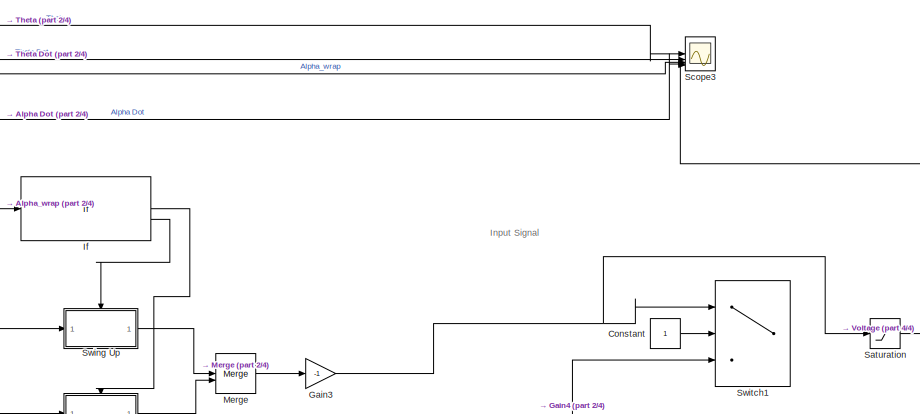
[diagram: root canvas - part 1/4, top right region]
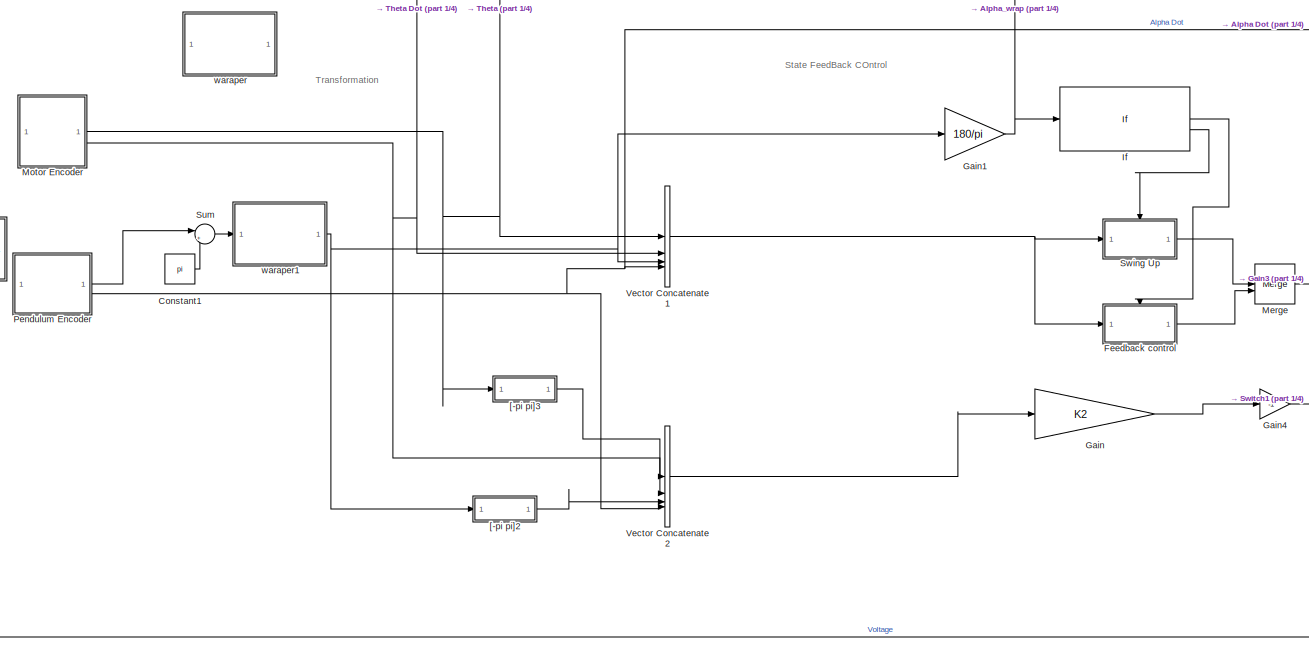
[diagram: root canvas - part 2/4, center side, full height]
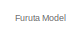
[diagram: root canvas - part 3/4, top left region]
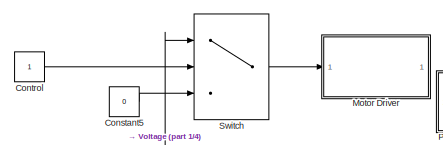
[diagram: root canvas - part 4/4, middle left region]
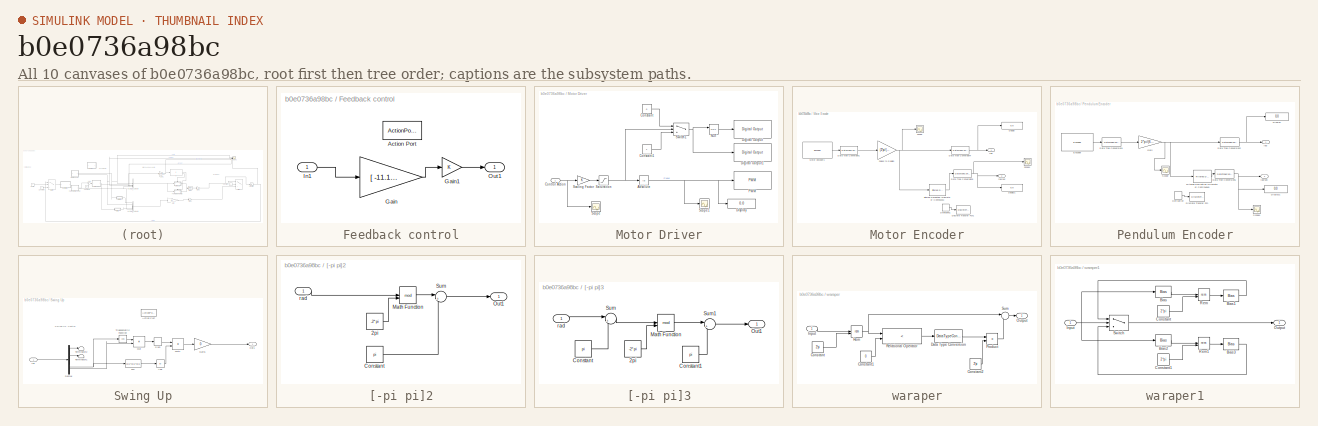
[diagram: thumbnail index - all 10 canvases of the model, root first then tree order]
MODEL slx_b0e0736a98bc
KIND model
CONFIG AbsTol = auto
CONFIG EnableMultiTasking = off
CONFIG FixedStep = Ts
CONFIG MaxStep = auto
CONFIG MinStep = auto
CONFIG PreLoadFcn = %myBusDef
CONFIG RelTol = 1e-3
CONFIG SampleTimeConstraint = Unconstrained
CONFIG SolverName = FixedStepAuto
CONFIG StartFcn = % Full path to the block\n%blk = 'Furuta_Control/Bus Creator';\n\n% Attach the event listener\n%h = add_exec_event_listener(blk, ...\n%         'PostOutputs', @displayBusdata);
CONFIG StartTime = 0.0
CONFIG StopTime = 30
BLOCK [Constant] Constant
  SampleTime = -1
BLOCK [Constant] Constant1
  SampleTime = -1
  Value = pi
BLOCK [Constant] Constant5
  Value = 0
BLOCK [Constant] Control
  SampleTime = -1
BLOCK [SubSystem] Feedback control
  TreatAsAtomicUnit = on
BLOCK [ActionPort] Feedback control/Action Port
  ActionPortLabel = if((u1 < 20) & (u1 > -20))
BLOCK [Gain] Feedback control/Gain
  Gain = [ -11.18033989  -17.56383192 -336.55496326  -27.29856104]
  Multiplication = Matrix(K*u)
  OutDataTypeStr = double
  ParamDataTypeStr = double
BLOCK [Gain] Feedback control/Gain1
BLOCK [Inport] Feedback control/In1
BLOCK [Outport] Feedback control/Out1
  VectorParamsAs1DForOutWhenUnconnected = off
BLOCK [Gain] Gain
  Commented = on
  Gain = K2
  Multiplication = Matrix(K*u)
BLOCK [Gain] Gain1
  Gain = 180/pi
BLOCK [Gain] Gain3
  Gain = -1
BLOCK [Gain] Gain4
  Commented = on
  Gain = -1
BLOCK [If] If
  IfExpression = (u1 < 20) & (u1 > -20)
BLOCK [Merge] Merge
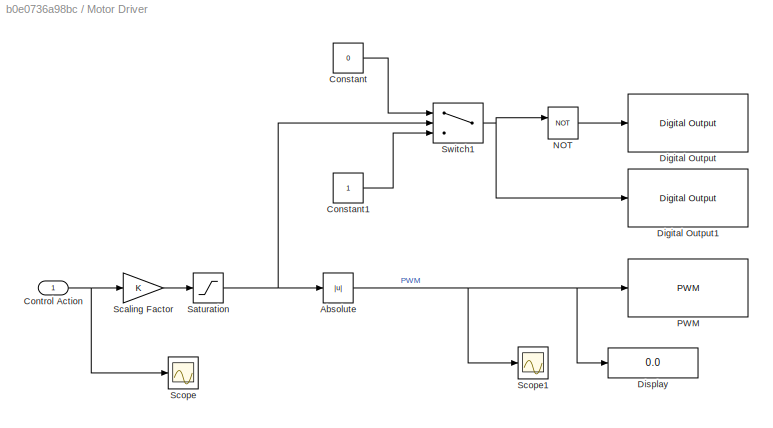
BLOCK [SubSystem] Motor Driver
BLOCK [Abs] Motor Driver/Absolute
  SaturateOnIntegerOverflow = off
BLOCK [Constant] Motor Driver/Constant
  Value = 0
BLOCK [Constant] Motor Driver/Constant1
BLOCK [Inport] Motor Driver/Control Action
BLOCK [Reference] Motor Driver/Digital Output  REF=arduinolib/Digital Output
  SourceBlock = arduinolib/Digital Output
  SourceType = Arduino Digital Output
BLOCK [Reference] Motor Driver/Digital Output1  REF=arduinolib/Digital Output
  SourceBlock = arduinolib/Digital Output
  SourceType = Arduino Digital Output
BLOCK [Display] Motor Driver/Display
  Decimation = 1
BLOCK [Logic] Motor Driver/NOT
  AllPortsSameDT = off
  IconShape = distinctive
  Operator = NOT
  OutDataTypeStr = boolean
BLOCK [Reference] Motor Driver/PWM  REF=arduinolib/PWM
  SourceBlock = arduinolib/PWM
  SourceType = Arduino PWM
BLOCK [Saturate] Motor Driver/Saturation
  LowerLimit = -255
  UpperLimit = 255
BLOCK [Gain] Motor Driver/Scaling Factor
BLOCK [Scope] Motor Driver/Scope
  Floating = off
  NumInputPorts = 1
  ScopeSpecificationString = Simulink.scopes.TimeScopeBlockCfg('CurrentConfiguration', extmgr.ConfigurationSet(extmgr.Configuration('Core','General UI',true),extmgr.Configuration('Core','Source UI',true),extmgr.Configuration('Sources','WiredSimulink',true,'DataLoggingVariableName','ScopeData1'),extmgr.Configuration('Visuals','Time Domain',true,'SerializedDisplays',{struct('MinYLimReal','-318.75','MaxYLimReal','318.75','YLabel...<+1442ch>
BLOCK [Scope] Motor Driver/Scope1
  Floating = off
  NumInputPorts = 1
  ScopeSpecificationString = Simulink.scopes.TimeScopeBlockCfg('CurrentConfiguration', extmgr.ConfigurationSet(extmgr.Configuration('Core','General UI',true),extmgr.Configuration('Core','Source UI',true),extmgr.Configuration('Sources','WiredSimulink',true,'DataLoggingVariableName','ScopeData1'),extmgr.Configuration('Visuals','Time Domain',true,'SerializedDisplays',{struct('MinYLimReal','-31.875','MaxYLimReal','286.875','YLabe...<+1437ch>
BLOCK [Switch] Motor Driver/Switch1
  InputSameDT = off
  SaturateOnIntegerOverflow = off
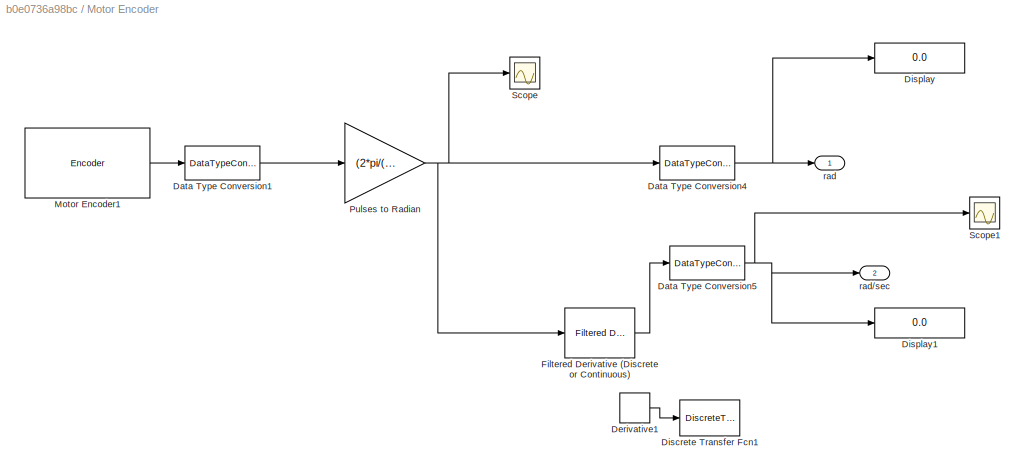
BLOCK [SubSystem] Motor Encoder
BLOCK [DataTypeConversion] Motor Encoder/Data Type Conversion1
  OutDataTypeStr = double
  RndMeth = Floor
  SaturateOnIntegerOverflow = off
BLOCK [DataTypeConversion] Motor Encoder/Data Type Conversion4
  RndMeth = Floor
  SaturateOnIntegerOverflow = off
BLOCK [DataTypeConversion] Motor Encoder/Data Type Conversion5
  RndMeth = Floor
  SaturateOnIntegerOverflow = off
BLOCK [Derivative] Motor Encoder/Derivative1
  Commented = on
BLOCK [DiscreteTransferFcn] Motor Encoder/Discrete Transfer Fcn1
  Commented = on
  Denominator = [1 -a]
  InputPortMap = u0
  Numerator = [1-a]
BLOCK [Display] Motor Encoder/Display
  Decimation = 1
BLOCK [Display] Motor Encoder/Display1
  Decimation = 1
BLOCK [Reference] Motor Encoder/Filtered Derivative (Discrete or Continuous)  REF=eeGeneralControl/Filtered Derivative
(Discrete or Continuous)
  SourceBlock = eeGeneralControl/Filtered Derivative\n(Discrete or Continuous)
  SourceType = Filtered Derivative (Discrete or Continuous)
BLOCK [Reference] Motor Encoder/Motor Encoder1  REF=arduinosensorlib/Encoder
  SourceBlock = arduinosensorlib/Encoder
  SourceType = Arduino Rotary Encoder
BLOCK [Gain] Motor Encoder/Pulses to Radian
  Gain = (2*pi/(374*4))
BLOCK [Scope] Motor Encoder/Scope
  Floating = off
  NumInputPorts = 1
  ScopeSpecificationString = Simulink.scopes.TimeScopeBlockCfg('CurrentConfiguration', extmgr.ConfigurationSet(extmgr.Configuration('Core','General UI',true),extmgr.Configuration('Core','Source UI',true),extmgr.Configuration('Sources','WiredSimulink',true,'DataLoggingVariableName','ScopeData1'),extmgr.Configuration('Visuals','Time Domain',true,'SerializedDisplays',{struct('MinYLimReal','-0.7833','MaxYLimReal','1.7157','YLabel...<+1453ch>
BLOCK [Scope] Motor Encoder/Scope1
  Floating = off
  NumInputPorts = 1
  ScopeSpecificationString = Simulink.scopes.TimeScopeBlockCfg('CurrentConfiguration', extmgr.ConfigurationSet(extmgr.Configuration('Core','General UI',true),extmgr.Configuration('Core','Source UI',true),extmgr.Configuration('Sources','WiredSimulink',true,'DataLoggingVariableName','ScopeData1'),extmgr.Configuration('Visuals','Time Domain',true,'SerializedDisplays',{struct('MinYLimReal','-1.00000','MaxYLimReal','1.00000','YLab...<+1436ch>
BLOCK [Outport] Motor Encoder/rad
BLOCK [Outport] Motor Encoder/rad//sec
  Port = 2
BLOCK [SubSystem] Pendulum Encoder
BLOCK [DataTypeConversion] Pendulum Encoder/Data Type Conversion1
  OutDataTypeStr = double
  RndMeth = Floor
  SaturateOnIntegerOverflow = off
BLOCK [DataTypeConversion] Pendulum Encoder/Data Type Conversion2
  RndMeth = Floor
  SaturateOnIntegerOverflow = off
BLOCK [DataTypeConversion] Pendulum Encoder/Data Type Conversion5
  RndMeth = Floor
  SaturateOnIntegerOverflow = off
BLOCK [Derivative] Pendulum Encoder/Derivative
  Commented = on
BLOCK [DiscreteTransferFcn] Pendulum Encoder/Discrete Transfer Fcn
  Commented = on
  Denominator = [1 -a]
  InputPortMap = u0
  Numerator = [1-a]
BLOCK [Display] Pendulum Encoder/Display
  Decimation = 1
BLOCK [Display] Pendulum Encoder/Display1
  Decimation = 1
BLOCK [Reference] Pendulum Encoder/Encoder  REF=arduinosensorlib/Encoder
  SourceBlock = arduinosensorlib/Encoder
  SourceType = Arduino Rotary Encoder
BLOCK [Reference] Pendulum Encoder/Filtered Derivative (Discrete or Continuous)  REF=eeGeneralControl/Filtered Derivative
(Discrete or Continuous)
  SourceBlock = eeGeneralControl/Filtered Derivative\n(Discrete or Continuous)
  SourceType = Filtered Derivative (Discrete or Continuous)
BLOCK [Gain] Pendulum Encoder/Gain
  Gain = 2*pi/(600*4)
BLOCK [Scope] Pendulum Encoder/Scope
  Floating = off
  NumInputPorts = 1
  ScopeSpecificationString = Simulink.scopes.TimeScopeBlockCfg('CurrentConfiguration', extmgr.ConfigurationSet(extmgr.Configuration('Core','General UI',true),extmgr.Configuration('Core','Source UI',true),extmgr.Configuration('Sources','WiredSimulink',true,'DataLoggingVariableName','ScopeData2'),extmgr.Configuration('Visuals','Time Domain',true),extmgr.Configuration('Tools','Plot Navigation',true),extmgr.Configuration('Tools',...<+40ch>
BLOCK [Scope] Pendulum Encoder/Scope1
  Floating = off
  NumInputPorts = 1
  ScopeSpecificationString = Simulink.scopes.TimeScopeBlockCfg('CurrentConfiguration', extmgr.ConfigurationSet(extmgr.Configuration('Core','General UI',true),extmgr.Configuration('Core','Source UI',true),extmgr.Configuration('Sources','WiredSimulink',true,'DataLoggingVariableName','ScopeData5'),extmgr.Configuration('Visuals','Time Domain',true,'SerializedDisplays',{struct('MinYLimReal','-1.00000','MaxYLimReal','1.00000','YLab...<+1405ch>
BLOCK [Outport] Pendulum Encoder/rad
BLOCK [Outport] Pendulum Encoder/rad//sec
  Port = 2
BLOCK [Saturate] Saturation
  LowerLimit = -255
  UpperLimit = 255
BLOCK [Scope] Scope3
  Floating = off
  NumInputPorts = 5
  ScopeSpecificationString = Simulink.scopes.TimeScopeBlockCfg('CurrentConfiguration', extmgr.ConfigurationSet(extmgr.Configuration('Core','General UI',true),extmgr.Configuration('Core','Source UI',true),extmgr.Configuration('Sources','WiredSimulink',true,'DataLoggingVariableName','ScopeData1'),extmgr.Configuration('Visuals','Time Domain',true,'SerializedDisplays',{struct('MinYLimReal','-2.6128','MaxYLimReal','-0.6128','YLabe...<+3548ch>
BLOCK [Sum] Sum
  Inputs = |++
BLOCK [SubSystem] Swing Up
  TreatAsAtomicUnit = on
BLOCK [Abs] Swing Up/Abs
  SaturateOnIntegerOverflow = off
BLOCK [ActionPort] Swing Up/Action Port
  ActionPortLabel = else
BLOCK [Demux] Swing Up/Demux
BLOCK [Fcn] Swing Up/Fcn
  Expr = u(1)*u(1)*u(1)
BLOCK [Gain] Swing Up/Gain1
  Gain = 0
BLOCK [Inport] Swing Up/In1
BLOCK [Product] Swing Up/Mut
  Inputs = **
BLOCK [Product] Swing Up/Mut1
  Inputs = **
BLOCK [Outport] Swing Up/Out1
  InitialOutput = 0
  VectorParamsAs1DForOutWhenUnconnected = off
BLOCK [Signum] Swing Up/Sign
BLOCK [Terminator] Swing Up/Terminator1
BLOCK [Terminator] Swing Up/Terminator2
BLOCK [Trigonometry] Swing Up/Trigonometric Function
  Operator = cos
BLOCK [Switch] Switch
  Criteria = u2 > Threshold
  InputSameDT = off
  SaturateOnIntegerOverflow = off
  Threshold = 0.5
BLOCK [Switch] Switch1
  Commented = on
  Criteria = u2 > Threshold
  InputSameDT = off
  SaturateOnIntegerOverflow = off
  Threshold = 0.5
BLOCK [Concatenate] Vector Concatenate1
  Mode = Multidimensional array
  NumInputs = 4
BLOCK [Concatenate] Vector Concatenate2
  Commented = on
  Mode = Multidimensional array
  NumInputs = 4
BLOCK [SubSystem] [-pi pi]2
  Commented = on
BLOCK [Constant] [-pi pi]2/2pi
  Value = -2*pi
BLOCK [Constant] [-pi pi]2/Constant
  Value = pi
BLOCK [Math] [-pi pi]2/Math Function
  Operator = mod
  SignedPower = on
BLOCK [Outport] [-pi pi]2/Out1
  VectorParamsAs1DForOutWhenUnconnected = off
BLOCK [Sum] [-pi pi]2/Sum
  Inputs = |++
BLOCK [Inport] [-pi pi]2/rad
BLOCK [SubSystem] [-pi pi]3
  Commented = on
BLOCK [Constant] [-pi pi]3/2pi
  Value = -2*pi
BLOCK [Constant] [-pi pi]3/Constant
  Value = pi
BLOCK [Constant] [-pi pi]3/Constant1
  Value = pi
BLOCK [Math] [-pi pi]3/Math Function
  Operator = mod
  SignedPower = on
BLOCK [Outport] [-pi pi]3/Out1
  VectorParamsAs1DForOutWhenUnconnected = off
BLOCK [Sum] [-pi pi]3/Sum
  Inputs = |+-
BLOCK [Sum] [-pi pi]3/Sum1
  Inputs = |++
BLOCK [Inport] [-pi pi]3/rad
BLOCK [SubSystem] waraper
  Commented = on
BLOCK [Constant] waraper/Constant
  Value = 2*pi
BLOCK [Constant] waraper/Constant1
  Value = 0
BLOCK [Constant] waraper/Constant2
  Value = 2*pi
BLOCK [DataTypeConversion] waraper/Data Type Conversion
  OutDataTypeStr = double
  RndMeth = Floor
  SaturateOnIntegerOverflow = off
BLOCK [Inport] waraper/Input
BLOCK [Outport] waraper/Output
BLOCK [Product] waraper/Product
BLOCK [RelationalOperator] waraper/Relational Operator
  InputSameDT = off
  Operator = <
  OutDataTypeStr = boolean
  RndMeth = Simplest
BLOCK [Math] waraper/Rem
  Operator = rem
BLOCK [Sum] waraper/Sum
  Inputs = |++
BLOCK [SubSystem] waraper1
BLOCK [Bias] waraper1/Bias
  Bias = pi
  SaturateOnIntegerOverflow = off
BLOCK [Bias] waraper1/Bias1
  Bias = -pi
  SaturateOnIntegerOverflow = off
BLOCK [Bias] waraper1/Bias2
  Bias = -pi
  SaturateOnIntegerOverflow = off
BLOCK [Bias] waraper1/Bias3
  Bias = +pi
  SaturateOnIntegerOverflow = off
BLOCK [Constant] waraper1/Constant
  Value = 2*pi
BLOCK [Constant] waraper1/Constant1
  Value = 2*pi
BLOCK [Inport] waraper1/Input
BLOCK [Outport] waraper1/Output
BLOCK [Math] waraper1/Rem
  Operator = rem
BLOCK [Math] waraper1/Rem1
  Operator = rem
BLOCK [Switch] waraper1/Switch
  InputSameDT = off
  SaturateOnIntegerOverflow = off
ANNOTATION (root): Furuta Model
ANNOTATION (root): Input Signal
ANNOTATION (root): State FeedBack COntrol
ANNOTATION (root): Transformation
ANNOTATION Swing Up: Swing-UP Control
LINE Constant1:1 -> Sum:2
LINE Constant5:1 -> Switch:3
LINE Constant:1 -> Switch1:2
LINE Control:1 -> Switch:2
LINE Feedback control/Gain1:1 -> Feedback control/Out1:1
LINE Feedback control/Gain:1 -> Feedback control/Gain1:1
LINE Feedback control/In1:1 -> Feedback control/Gain:1
LINE Feedback control:1 -> Merge:2
NET Gain1:1 -> If:1, Scope3:3
NET Gain3:1 -> Saturation:1, Switch1:1
LINE Gain4:1 -> Switch1:3
LINE Gain:1 -> Gain4:1
LINE If:1 -> Feedback control:ifaction
LINE If:2 -> Swing Up:ifaction
LINE Merge:1 -> Gain3:1
NET Motor Driver/Absolute:1 -> Motor Driver/Display:1, Motor Driver/PWM:1, Motor Driver/Scope1:1
LINE Motor Driver/Constant1:1 -> Motor Driver/Switch1:3
LINE Motor Driver/Constant:1 -> Motor Driver/Switch1:1
NET Motor Driver/Control Action:1 -> Motor Driver/Scaling Factor:1, Motor Driver/Scope:1
LINE Motor Driver/NOT:1 -> Motor Driver/Digital Output:1
NET Motor Driver/Saturation:1 -> Motor Driver/Absolute:1, Motor Driver/Switch1:2
LINE Motor Driver/Scaling Factor:1 -> Motor Driver/Saturation:1
NET Motor Driver/Switch1:1 -> Motor Driver/Digital Output1:1, Motor Driver/NOT:1
LINE Motor Encoder/Data Type Conversion1:1 -> Motor Encoder/Pulses to Radian:1
NET Motor Encoder/Data Type Conversion4:1 -> Motor Encoder/Display:1, Motor Encoder/rad:1
NET Motor Encoder/Data Type Conversion5:1 -> Motor Encoder/Display1:1, Motor Encoder/Scope1:1, Motor Encoder/rad//sec:1
LINE Motor Encoder/Derivative1:1 -> Motor Encoder/Discrete Transfer Fcn1:1
LINE Motor Encoder/Filtered Derivative (Discrete or Continuous):1 -> Motor Encoder/Data Type Conversion5:1
LINE Motor Encoder/Motor Encoder1:1 -> Motor Encoder/Data Type Conversion1:1
NET Motor Encoder/Pulses to Radian:1 -> Motor Encoder/Data Type Conversion4:1, Motor Encoder/Filtered Derivative (Discrete or Continuous):1, Motor Encoder/Scope:1
NET Motor Encoder:1 -> Scope3:1, Vector Concatenate1:1, [-pi pi]3:1
NET Motor Encoder:2 -> Scope3:2, Vector Concatenate1:2, Vector Concatenate2:2
LINE Pendulum Encoder/Data Type Conversion1:1 -> Pendulum Encoder/Gain:1
NET Pendulum Encoder/Data Type Conversion2:1 -> Pendulum Encoder/Display:1, Pendulum Encoder/rad:1
NET Pendulum Encoder/Data Type Conversion5:1 -> Pendulum Encoder/Display1:1, Pendulum Encoder/Scope1:1, Pendulum Encoder/rad//sec:1
LINE Pendulum Encoder/Derivative:1 -> Pendulum Encoder/Discrete Transfer Fcn:1
LINE Pendulum Encoder/Encoder:1 -> Pendulum Encoder/Data Type Conversion1:1
LINE Pendulum Encoder/Filtered Derivative (Discrete or Continuous):1 -> Pendulum Encoder/Data Type Conversion5:1
NET Pendulum Encoder/Gain:1 -> Pendulum Encoder/Data Type Conversion2:1, Pendulum Encoder/Filtered Derivative (Discrete or Continuous):1, Pendulum Encoder/Scope:1
LINE Pendulum Encoder:1 -> Sum:1
NET Pendulum Encoder:2 -> Scope3:4, Vector Concatenate1:4, Vector Concatenate2:4
NET Saturation:1 -> Scope3:5, Switch:1
LINE Sum:1 -> waraper1:1
LINE Swing Up/Abs:1 -> Swing Up/Mut1:2
LINE Swing Up/Demux:1 -> Swing Up/Terminator2:1
LINE Swing Up/Demux:2 -> Swing Up/Terminator1:1
NET Swing Up/Demux:3 -> Swing Up/Fcn:1, Swing Up/Trigonometric Function:1
LINE Swing Up/Demux:4 -> Swing Up/Mut:2
LINE Swing Up/Fcn:1 -> Swing Up/Abs:1
LINE Swing Up/Gain1:1 -> Swing Up/Out1:1
LINE Swing Up/In1:1 -> Swing Up/Demux:1
LINE Swing Up/Mut1:1 -> Swing Up/Gain1:1
LINE Swing Up/Mut:1 -> Swing Up/Sign:1
LINE Swing Up/Sign:1 -> Swing Up/Mut1:1
LINE Swing Up/Trigonometric Function:1 -> Swing Up/Mut:1
LINE Swing Up:1 -> Merge:1
LINE Switch:1 -> Motor Driver:1
NET Vector Concatenate1:1 -> Feedback control:1, Swing Up:1
LINE Vector Concatenate2:1 -> Gain:1
LINE [-pi pi]2/2pi:1 -> [-pi pi]2/Math Function:2
LINE [-pi pi]2/Constant:1 -> [-pi pi]2/Sum:2
LINE [-pi pi]2/Math Function:1 -> [-pi pi]2/Sum:1
LINE [-pi pi]2/Sum:1 -> [-pi pi]2/Out1:1
LINE [-pi pi]2/rad:1 -> [-pi pi]2/Math Function:1
LINE [-pi pi]2:1 -> Vector Concatenate2:3
LINE [-pi pi]3/2pi:1 -> [-pi pi]3/Math Function:2
LINE [-pi pi]3/Constant1:1 -> [-pi pi]3/Sum1:2
LINE [-pi pi]3/Constant:1 -> [-pi pi]3/Sum:2
LINE [-pi pi]3/Math Function:1 -> [-pi pi]3/Sum1:1
LINE [-pi pi]3/Sum1:1 -> [-pi pi]3/Out1:1
LINE [-pi pi]3/Sum:1 -> [-pi pi]3/Math Function:1
LINE [-pi pi]3/rad:1 -> [-pi pi]3/Sum:1
LINE [-pi pi]3:1 -> Vector Concatenate2:1
LINE waraper/Constant1:1 -> waraper/Relational Operator:2
LINE waraper/Constant2:1 -> waraper/Product:2
LINE waraper/Constant:1 -> waraper/Rem:2
LINE waraper/Data Type Conversion:1 -> waraper/Product:1
LINE waraper/Input:1 -> waraper/Rem:1
LINE waraper/Product:1 -> waraper/Sum:2
LINE waraper/Relational Operator:1 -> waraper/Data Type Conversion:1
NET waraper/Rem:1 -> waraper/Relational Operator:1, waraper/Sum:1
LINE waraper/Sum:1 -> waraper/Output:1
LINE waraper1/Bias1:1 -> waraper1/Switch:1
LINE waraper1/Bias2:1 -> waraper1/Rem1:1
LINE waraper1/Bias3:1 -> waraper1/Switch:3
LINE waraper1/Bias:1 -> waraper1/Rem:1
LINE waraper1/Constant1:1 -> waraper1/Rem1:2
LINE waraper1/Constant:1 -> waraper1/Rem:2
NET waraper1/Input:1 -> waraper1/Bias2:1, waraper1/Bias:1, waraper1/Switch:2
LINE waraper1/Rem1:1 -> waraper1/Bias3:1
LINE waraper1/Rem:1 -> waraper1/Bias1:1
LINE waraper1/Switch:1 -> waraper1/Output:1
NET waraper1:1 -> Gain1:1, Vector Concatenate1:3, [-pi pi]2:1
note: NET lines group one-source signal fan-out (src -> all destinations, sorted); 1:1 wires keep LINE
